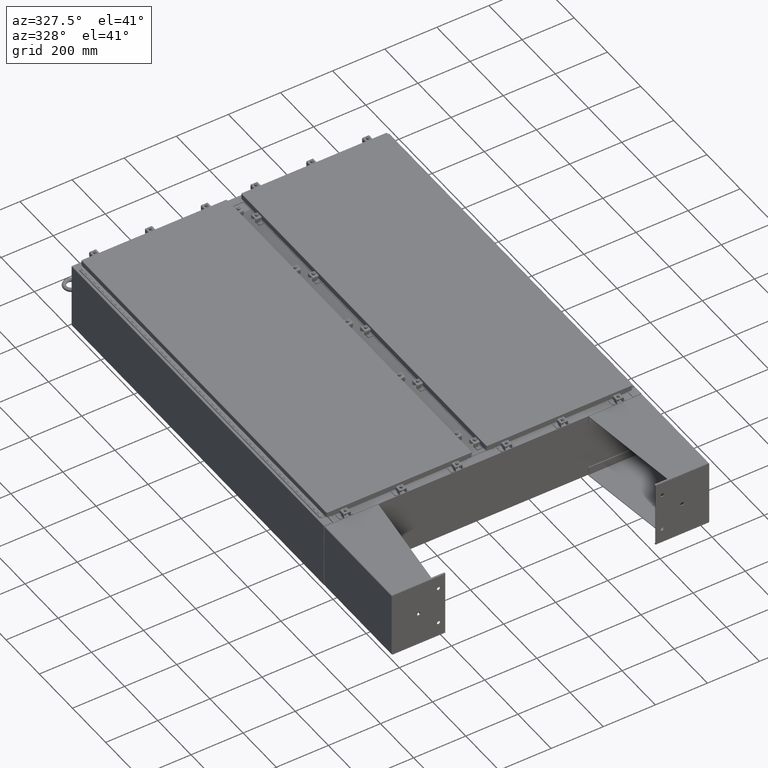
[diagram: clean part render]
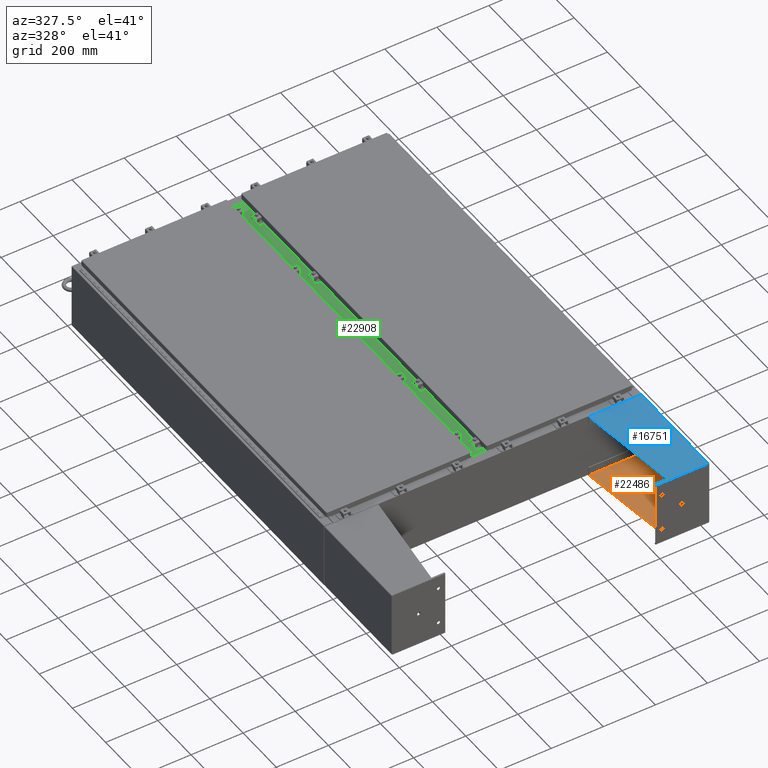
[diagram: same view with three faces highlighted in distinct colors, each labeled with its STEP entity id]
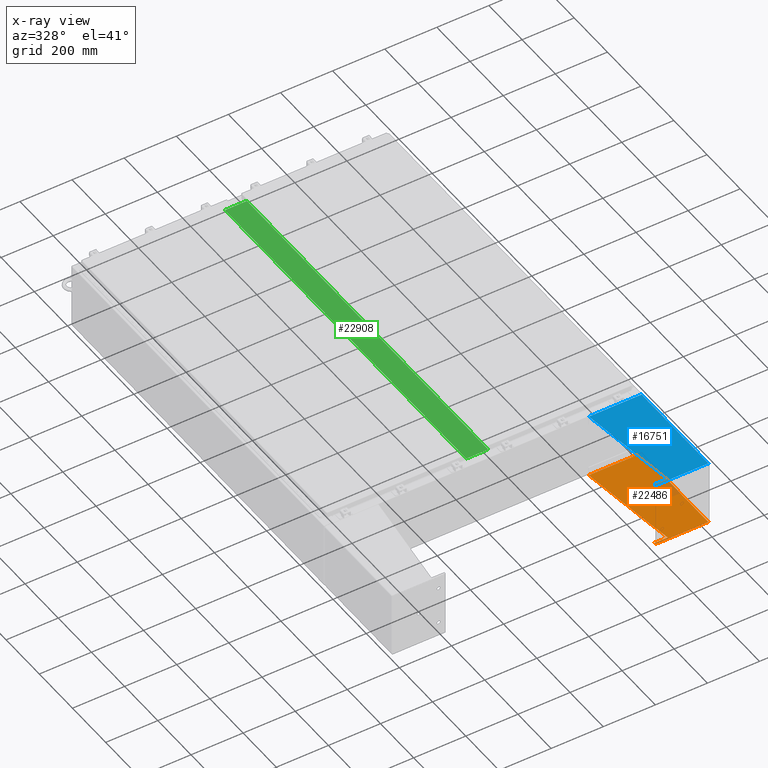
[diagram: x-ray of the same camera — body ghosted, the three highlighted faces saturated]
A machine part, auxiliary view with three faces highlighted in distinct colors.
The next image is the same camera in x-ray (body ghosted, the three faces saturated) — at least one of them is partly hidden behind the body in this view.
Their STEP definitions:

[orange] entity #22486 — the highlighted planar face has unit normal (-0, -0, 1).
#480 = DIRECTION ( 'NONE',  ( -3.550958521948399600E-015, 2.224516740755108100E-031, 1.000000000000000000 ) ) ;
#1738 = VECTOR ( 'NONE', #480, 39.37007874015748100 ) ;
#2204 = DIRECTION ( 'NONE',  ( -0.0000000000000000000, 1.000000000000000000, 1.198498701752371100E-031 ) ) ;
#2382 = CARTESIAN_POINT ( 'NONE',  ( -4.895999999999999000, 7.857000000000002900, 0.03900000000003747700 ) ) ;
#3743 = CARTESIAN_POINT ( 'NONE',  ( -4.896000000000043400, 7.856999999999937100, 8.000999999999999400 ) ) ;
#6798 = VECTOR ( 'NONE', #30325, 39.37007874015748100 ) ;
#6892 = VERTEX_POINT ( 'NONE', #23485 ) ;
#7984 = ORIENTED_EDGE ( 'NONE', *, *, #24093, .F. ) ;
#9065 = DIRECTION ( 'NONE',  ( 7.004738445293026100E-015, -2.790682903051007200E-031, -1.000000000000000000 ) ) ;
#9828 = VERTEX_POINT ( 'NONE', #2382 ) ;
#11215 = VECTOR ( 'NONE', #43347, 39.37007874015748100 ) ;
#16346 = VERTEX_POINT ( 'NONE', #63081 ) ;
#17890 = ORIENTED_EDGE ( 'NONE', *, *, #58567, .F. ) ;
#18975 = VERTEX_POINT ( 'NONE', #21022 ) ;
#20727 = LINE ( 'NONE', #61850, #6798 ) ;
#21022 = CARTESIAN_POINT ( 'NONE',  ( -4.896000000000000800, -8.000000000000001800, 0.03900000000000250500 ) ) ;
#22336 = CARTESIAN_POINT ( 'NONE',  ( -4.896000000000022100, -7.749999999999999100, 6.052216497445943600 ) ) ;
#22486 = ADVANCED_FACE ( 'NONE', ( #65357 ), #23552, .T. ) ;
#22958 = VECTOR ( 'NONE', #2204, 39.37007874015748100 ) ;
#23328 = CARTESIAN_POINT ( 'NONE',  ( -4.896000000000030100, 7.999999999999936900, 8.000999999999999400 ) ) ;
#23485 = CARTESIAN_POINT ( 'NONE',  ( -4.896000000000031000, -8.000000000000001800, 8.000999999999999400 ) ) ;
#23552 = PLANE ( 'NONE',  #59764 ) ;
#24093 = EDGE_CURVE ( 'NONE', #16346, #34471, #37957, .T. ) ;
#25152 = CARTESIAN_POINT ( 'NONE',  ( -4.896000000000024800, -7.749999999999999100, 6.052216497445943600 ) ) ;
#25256 = VERTEX_POINT ( 'NONE', #40502 ) ;
#26840 = LINE ( 'NONE', #3743, #53205 ) ;
#26977 = EDGE_CURVE ( 'NONE', #34471, #25256, #67228, .T. ) ;
#28867 = DIRECTION ( 'NONE',  ( 3.550958521948399600E-015, -2.224516740755108100E-031, -1.000000000000000000 ) ) ;
#29754 = EDGE_CURVE ( 'NONE', #9828, #18975, #20727, .T. ) ;
#30325 = DIRECTION ( 'NONE',  ( 0.0000000000000000000, -1.000000000000000000, -1.198498701752371100E-031 ) ) ;
#34471 = VERTEX_POINT ( 'NONE', #25152 ) ;
#37004 = LINE ( 'NONE', #59976, #22958 ) ;
#37957 = LINE ( 'NONE', #41796, #50282 ) ;
#38560 = EDGE_CURVE ( 'NONE', #6892, #16346, #37004, .T. ) ;
#40502 = CARTESIAN_POINT ( 'NONE',  ( -4.896000000000043400, 7.856999999999937100, 8.000999999999999400 ) ) ;
#41796 = CARTESIAN_POINT ( 'NONE',  ( -4.896000000000031000, -7.749999999999999100, 8.001000000000024300 ) ) ;
#43347 = DIRECTION ( 'NONE',  ( -4.399772607369896100E-016, 0.9922942345449394800, 0.1239038017531047700 ) ) ;
#43779 = LINE ( 'NONE', #63547, #1738 ) ;
#45531 = ORIENTED_EDGE ( 'NONE', *, *, #47265, .F. ) ;
#46969 = ORIENTED_EDGE ( 'NONE', *, *, #26977, .F. ) ;
#47265 = EDGE_CURVE ( 'NONE', #25256, #9828, #26840, .T. ) ;
#50282 = VECTOR ( 'NONE', #62741, 39.37007874015748100 ) ;
#50593 = ORIENTED_EDGE ( 'NONE', *, *, #29754, .F. ) ;
#53205 = VECTOR ( 'NONE', #9065, 39.37007874015748100 ) ;
#58567 = EDGE_CURVE ( 'NONE', #18975, #6892, #43779, .T. ) ;
#59549 = ORIENTED_EDGE ( 'NONE', *, *, #38560, .F. ) ;
#59764 = AXIS2_PLACEMENT_3D ( 'NONE', #23328, #60422, #28867 ) ;
#59976 = CARTESIAN_POINT ( 'NONE',  ( -4.896000000000030100, 7.999999999999936900, 8.000999999999999400 ) ) ;
#60422 = DIRECTION ( 'NONE',  ( 1.000000000000000000, 4.465013461865369200E-059, 3.550958521948399600E-015 ) ) ;
#61850 = CARTESIAN_POINT ( 'NONE',  ( -4.895999999999999000, 8.000000000000001800, 0.03900000000003310500 ) ) ;
#62620 = EDGE_LOOP ( 'NONE', ( #46969, #7984, #59549, #17890, #50593, #45531 ) ) ;
#62741 = DIRECTION ( 'NONE',  ( 3.550958521948399600E-015, -2.224516740755108100E-031, -1.000000000000000000 ) ) ;
#63081 = CARTESIAN_POINT ( 'NONE',  ( -4.896000000000029200, -7.749999999999999100, 8.001000000000024300 ) ) ;
#63547 = CARTESIAN_POINT ( 'NONE',  ( -4.896000000000031000, -8.000000000000001800, 8.000999999999999400 ) ) ;
#65357 = FACE_OUTER_BOUND ( 'NONE', #62620, .T. ) ;
#67228 = LINE ( 'NONE', #22336, #11215 ) ;

[blue] entity #16751 — the highlighted planar face has unit normal (0, 0, -1).
#1234 = DIRECTION ( 'NONE',  ( 0.0000000000000000000, -1.000000000000000000, -1.198498701752371100E-031 ) ) ;
#2864 = VECTOR ( 'NONE', #4809, 39.37007874015748100 ) ;
#3514 = LINE ( 'NONE', #22139, #57875 ) ;
#4809 = DIRECTION ( 'NONE',  ( 4.399772607369677600E-016, 0.9922942345449394800, 0.1239038017531047700 ) ) ;
#5638 = DIRECTION ( 'NONE',  ( -3.550958521948204300E-015, -1.724806627505603900E-032, -1.000000000000000000 ) ) ;
#7473 = AXIS2_PLACEMENT_3D ( 'NONE', #24552, #61419, #29880 ) ;
#8335 = DIRECTION ( 'NONE',  ( -3.550958521948204300E-015, -1.724806627505603900E-032, -1.000000000000000000 ) ) ;
#8728 = PLANE ( 'NONE',  #7473 ) ;
#13838 = CARTESIAN_POINT ( 'NONE',  ( 5.000000000000002700, 7.856999999999998400, 0.03900000000002436200 ) ) ;
#14384 = VECTOR ( 'NONE', #16804, 39.37007874015748100 ) ;
#15815 = VERTEX_POINT ( 'NONE', #66866 ) ;
#16751 = ADVANCED_FACE ( 'NONE', ( #56698 ), #8728, .F. ) ;
#16804 = DIRECTION ( 'NONE',  ( 0.0000000000000000000, -1.000000000000000000, -1.198498701752371100E-031 ) ) ;
#17079 = VERTEX_POINT ( 'NONE', #48460 ) ;
#17431 = ORIENTED_EDGE ( 'NONE', *, *, #31003, .T. ) ;
#17512 = CARTESIAN_POINT ( 'NONE',  ( 5.000000000000029300, -8.000000000000001800, 8.000999999999987000 ) ) ;
#17837 = VERTEX_POINT ( 'NONE', #13838 ) ;
#22139 = CARTESIAN_POINT ( 'NONE',  ( 5.000000000000029300, -8.000000000000001800, 8.000999999999987000 ) ) ;
#24552 = CARTESIAN_POINT ( 'NONE',  ( 5.000000000000029300, -8.000000000000001800, 8.000999999999987000 ) ) ;
#27418 = EDGE_CURVE ( 'NONE', #17079, #42184, #29220, .T. ) ;
#27486 = LINE ( 'NONE', #39900, #52179 ) ;
#28148 = EDGE_CURVE ( 'NONE', #40868, #60893, #56290, .T. ) ;
#28284 = VECTOR ( 'NONE', #5638, 39.37007874015748100 ) ;
#28418 = LINE ( 'NONE', #32509, #14384 ) ;
#29220 = LINE ( 'NONE', #36356, #2864 ) ;
#29880 = DIRECTION ( 'NONE',  ( 3.550958521948204300E-015, 1.724806627505603900E-032, 1.000000000000000000 ) ) ;
#31003 = EDGE_CURVE ( 'NONE', #17837, #42184, #61795, .T. ) ;
#32509 = CARTESIAN_POINT ( 'NONE',  ( 5.000000000000000900, -8.000000000000133200, 0.03899999999998939700 ) ) ;
#34023 = CARTESIAN_POINT ( 'NONE',  ( 5.000000000000043500, 7.856999999999933600, 8.000999999999969200 ) ) ;
#36356 = CARTESIAN_POINT ( 'NONE',  ( 5.000000000000021300, -7.749999999999999100, 6.052216497445926700 ) ) ;
#39746 = DIRECTION ( 'NONE',  ( 7.004738445292831300E-015, -3.936854995453401900E-032, 1.000000000000000000 ) ) ;
#39900 = CARTESIAN_POINT ( 'NONE',  ( 5.000000000000027500, -7.749999999999999100, 8.000999999999985200 ) ) ;
#40868 = VERTEX_POINT ( 'NONE', #17512 ) ;
#40946 = ORIENTED_EDGE ( 'NONE', *, *, #27418, .F. ) ;
#41645 = EDGE_CURVE ( 'NONE', #15815, #17079, #27486, .T. ) ;
#42184 = VERTEX_POINT ( 'NONE', #34023 ) ;
#42492 = CARTESIAN_POINT ( 'NONE',  ( 5.000000000000029300, -8.000000000000001800, 8.000999999999987000 ) ) ;
#42857 = VECTOR ( 'NONE', #39746, 39.37007874015748100 ) ;
#45170 = CARTESIAN_POINT ( 'NONE',  ( 5.000000000000000900, -8.000000000000133200, 0.03900000000000250500 ) ) ;
#45337 = ORIENTED_EDGE ( 'NONE', *, *, #28148, .T. ) ;
#47109 = EDGE_LOOP ( 'NONE', ( #53660, #59767, #45337, #67574, #17431, #40946 ) ) ;
#48460 = CARTESIAN_POINT ( 'NONE',  ( 5.000000000000021300, -7.749999999999999100, 6.052216497445926700 ) ) ;
#52179 = VECTOR ( 'NONE', #8335, 39.37007874015748100 ) ;
#53660 = ORIENTED_EDGE ( 'NONE', *, *, #41645, .F. ) ;
#56290 = LINE ( 'NONE', #42492, #28284 ) ;
#56698 = FACE_OUTER_BOUND ( 'NONE', #47109, .T. ) ;
#57875 = VECTOR ( 'NONE', #1234, 39.37007874015748100 ) ;
#59767 = ORIENTED_EDGE ( 'NONE', *, *, #63747, .T. ) ;
#60645 = CARTESIAN_POINT ( 'NONE',  ( 5.000000000000002700, 7.856999999999998400, 0.03900000000002436200 ) ) ;
#60893 = VERTEX_POINT ( 'NONE', #45170 ) ;
#61419 = DIRECTION ( 'NONE',  ( -1.000000000000000000, -6.212279628615467300E-030, 3.550958521948204300E-015 ) ) ;
#61795 = LINE ( 'NONE', #60645, #42857 ) ;
#62375 = EDGE_CURVE ( 'NONE', #17837, #60893, #28418, .T. ) ;
#63747 = EDGE_CURVE ( 'NONE', #15815, #40868, #3514, .T. ) ;
#66866 = CARTESIAN_POINT ( 'NONE',  ( 5.000000000000027500, -7.749999999999999100, 8.001000000000006600 ) ) ;
#67574 = ORIENTED_EDGE ( 'NONE', *, *, #62375, .F. ) ;

[green] entity #22908 — the highlighted planar face has unit normal (0, 0, -1).
#517 = DIRECTION ( 'NONE',  ( -1.000000000000000000, 0.0000000000000000000, -0.0000000000000000000 ) ) ;
#4166 = ORIENTED_EDGE ( 'NONE', *, *, #63407, .T. ) ;
#5909 = DIRECTION ( 'NONE',  ( -0.0000000000000000000, -1.000000000000000000, -0.0000000000000000000 ) ) ;
#6637 = VECTOR ( 'NONE', #5909, 39.37007874015748100 ) ;
#9947 = LINE ( 'NONE', #32156, #6637 ) ;
#10998 = LINE ( 'NONE', #34876, #63687 ) ;
#11520 = VERTEX_POINT ( 'NONE', #56322 ) ;
#13914 = DIRECTION ( 'NONE',  ( 1.000000000000000000, 0.0000000000000000000, 0.0000000000000000000 ) ) ;
#14796 = CARTESIAN_POINT ( 'NONE',  ( -1.662299999999999700, -28.62499999999999600, 0.0000000000000000000 ) ) ;
#15469 = EDGE_CURVE ( 'NONE', #24799, #11520, #9947, .T. ) ;
#16117 = PLANE ( 'NONE',  #21832 ) ;
#17821 = ORIENTED_EDGE ( 'NONE', *, *, #54024, .T. ) ;
#19541 = DIRECTION ( 'NONE',  ( -1.000000000000000000, -0.0000000000000000000, -0.0000000000000000000 ) ) ;
#20095 = VERTEX_POINT ( 'NONE', #46708 ) ;
#20739 = ORIENTED_EDGE ( 'NONE', *, *, #15469, .F. ) ;
#20858 = VERTEX_POINT ( 'NONE', #66398 ) ;
#21832 = AXIS2_PLACEMENT_3D ( 'NONE', #58291, #32049, #517 ) ;
#22908 = ADVANCED_FACE ( 'NONE', ( #54567 ), #16117, .F. ) ;
#24799 = VERTEX_POINT ( 'NONE', #31328 ) ;
#31328 = CARTESIAN_POINT ( 'NONE',  ( 1.662300000000000100, 28.62500000000000400, 0.0000000000000000000 ) ) ;
#32049 = DIRECTION ( 'NONE',  ( 0.0000000000000000000, 0.0000000000000000000, -1.000000000000000000 ) ) ;
#32156 = CARTESIAN_POINT ( 'NONE',  ( 1.662300000000000100, 28.62500000000000700, 0.0000000000000000000 ) ) ;
#34876 = CARTESIAN_POINT ( 'NONE',  ( -1.749999999999999600, -28.62499999999999600, 0.0000000000000000000 ) ) ;
#35355 = VECTOR ( 'NONE', #56964, 39.37007874015748100 ) ;
#37270 = EDGE_LOOP ( 'NONE', ( #62626, #4166, #20739, #17821 ) ) ;
#39454 = VECTOR ( 'NONE', #19541, 39.37007874015748100 ) ;
#46708 = CARTESIAN_POINT ( 'NONE',  ( -1.662299999999999700, 28.62500000000000700, 0.0000000000000000000 ) ) ;
#51099 = CARTESIAN_POINT ( 'NONE',  ( -1.749999999999999600, 28.62500000000000700, 0.0000000000000000000 ) ) ;
#53398 = LINE ( 'NONE', #51099, #39454 ) ;
#54024 = EDGE_CURVE ( 'NONE', #24799, #20095, #53398, .T. ) ;
#54567 = FACE_OUTER_BOUND ( 'NONE', #37270, .T. ) ;
#56322 = CARTESIAN_POINT ( 'NONE',  ( 1.662300000000000100, -28.62499999999999600, 0.0000000000000000000 ) ) ;
#56964 = DIRECTION ( 'NONE',  ( -0.0000000000000000000, 1.000000000000000000, -0.0000000000000000000 ) ) ;
#58291 = CARTESIAN_POINT ( 'NONE',  ( 1.750000000000000200, 28.62500000000000700, 0.0000000000000000000 ) ) ;
#59658 = EDGE_CURVE ( 'NONE', #20858, #20095, #63368, .T. ) ;
#62626 = ORIENTED_EDGE ( 'NONE', *, *, #59658, .F. ) ;
#63368 = LINE ( 'NONE', #14796, #35355 ) ;
#63407 = EDGE_CURVE ( 'NONE', #20858, #11520, #10998, .T. ) ;
#63687 = VECTOR ( 'NONE', #13914, 39.37007874015748100 ) ;
#66398 = CARTESIAN_POINT ( 'NONE',  ( -1.662299999999999700, -28.62499999999999300, 0.0000000000000000000 ) ) ;